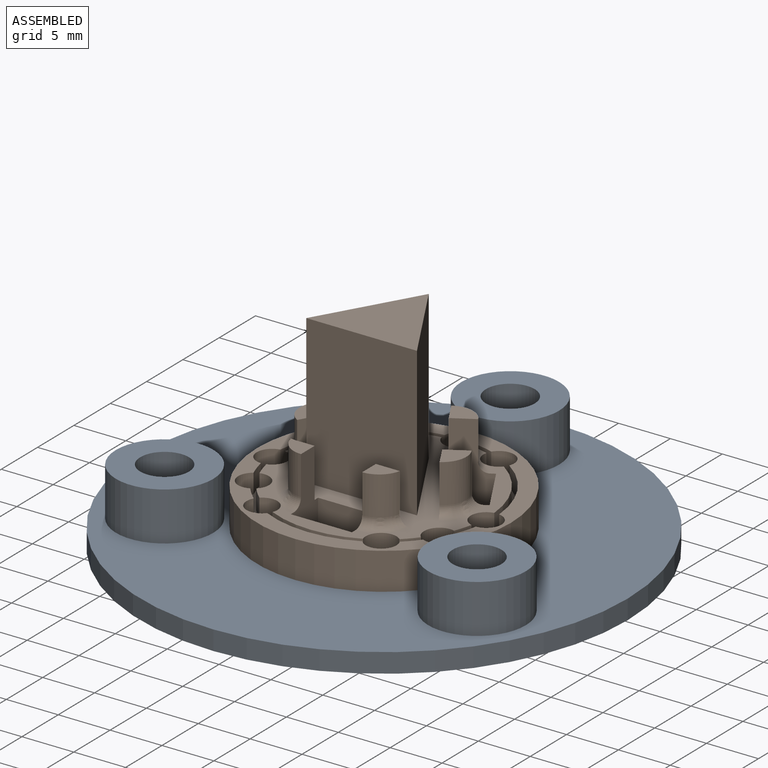
[diagram: assembled view]
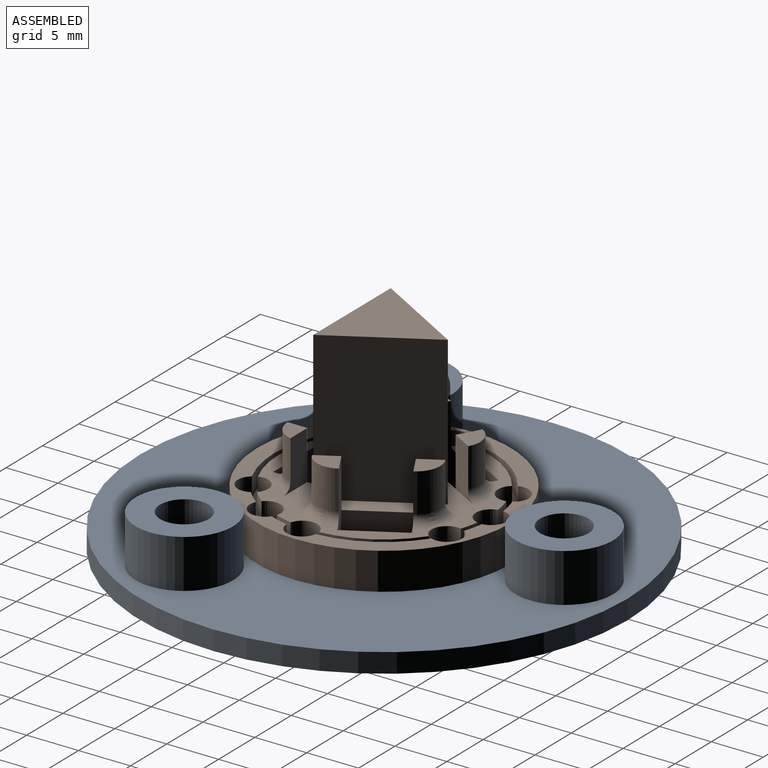
[diagram: assembled view, second angle]
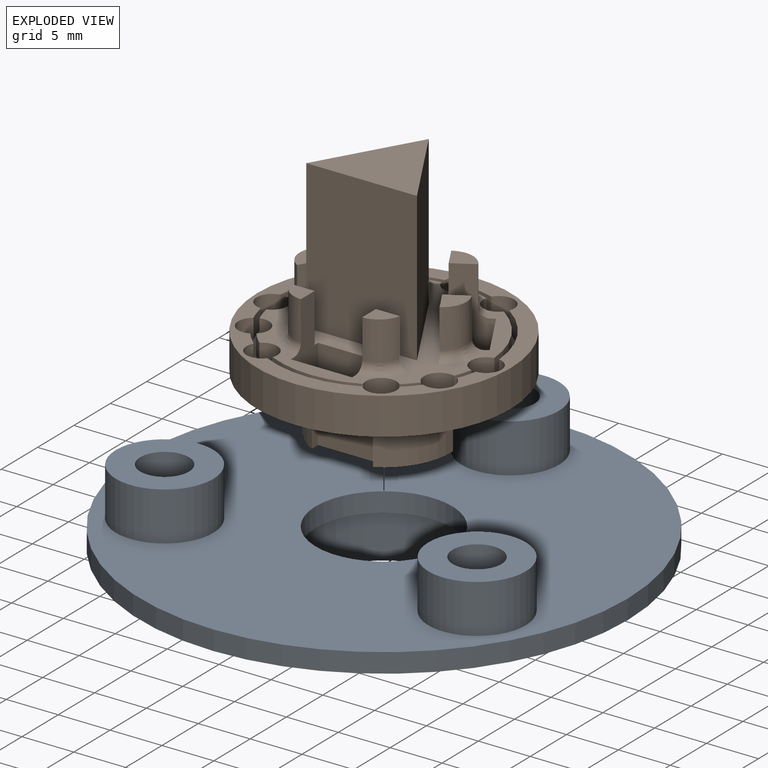
[diagram: exploded view]
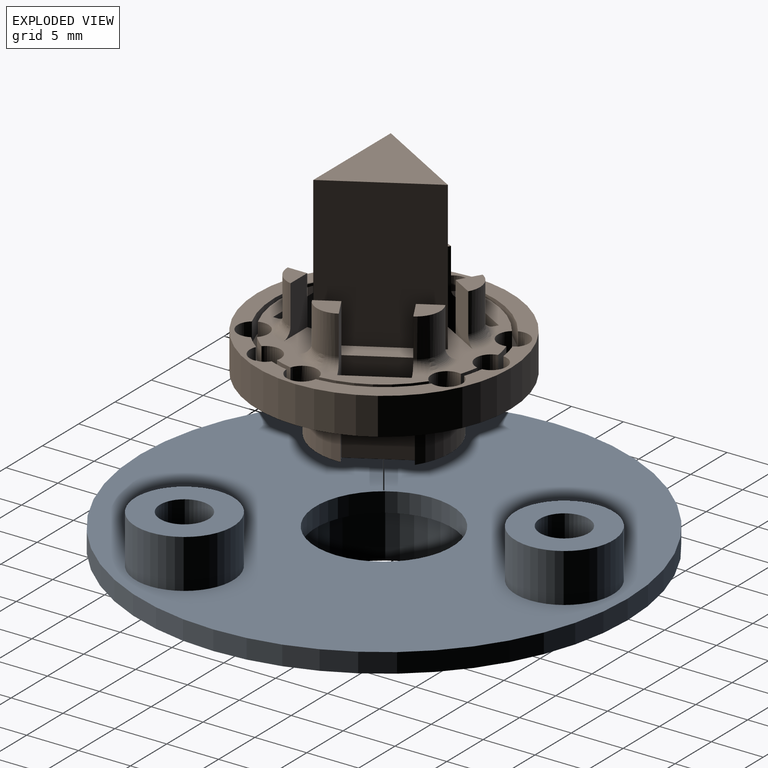
[diagram: exploded view, second angle]
ASSEMBLY  parts=2 mates=2
PART A: 20 faces, bbox 47x47x11.3 mm
  f0: plane 15.51x15.51mm, normal (0,0,-1), area 52.9mm2, adj f1,f17
  f1: cylinder r=6.58mm len=13.16mm, axis (0,0,-1), area 77.7mm2, adj f0,f3
  f2: cylinder r=23.5mm len=47mm, axis (0,0,-1), area 277.6mm2, adj f3,f4
  f3: plane 47x47mm, normal (0,0,1), area 1390.7mm2, adj f1,f2,f6,f10,f14
  f4: plane 47x47mm, normal (0,0,-1), area 1414.2mm2, adj f2,f18
  f5: cylinder r=2.35mm len=4.7mm, axis (0,0,-1), area 69.4mm2, adj f7,f8
  f6: cylinder r=4.7mm len=9.4mm, axis (0,0,-1), area 138.8mm2, adj f3,f7
  f7: plane 9.4x9.4mm, normal (0,0,1), area 52mm2, adj f5,f6
  f8: plane 4.7x4.7mm, normal (0,0,1), area 17.3mm2, adj f5
  f9: cylinder r=2.35mm len=4.7mm, axis (0,0,-1), area 69.4mm2, adj f11,f12
  f10: cylinder r=4.7mm len=9.4mm, axis (0,0,-1), area 138.8mm2, adj f3,f11
  f11: plane 9.4x9.4mm, normal (0,0,1), area 52mm2, adj f9,f10
  f12: plane 4.7x4.7mm, normal (0,0,1), area 17.3mm2, adj f9
  f13: cylinder r=2.35mm len=4.7mm, axis (0,0,-1), area 69.4mm2, adj f15,f16
  f14: cylinder r=4.7mm len=9.4mm, axis (0,0,-1), area 138.8mm2, adj f3,f15
  f15: plane 9.4x9.4mm, normal (0,0,1), area 52mm2, adj f13,f14
  f16: plane 4.7x4.7mm, normal (0,0,1), area 17.3mm2, adj f13
  f17: cylinder r=7.75mm len=15.51mm, axis (0,0,1), area 229mm2, adj f0,f19
  f18: cylinder r=10.1mm len=20.21mm, axis (0,0,1), area 298.4mm2, adj f4,f19
  f19: plane 20.21x20.21mm, normal (0,0,-1), area 131.9mm2, adj f17,f18
PART B: 100 faces, bbox 24.5x24.5x23.3 mm
  f0: plane 13.63x3.76mm, normal (1,0,0), area 27mm2, adj f4,f5,f10,f27,f29,f36,f37,f39
  f1: plane 13.63x3.76mm, normal (-1,0,0), area 27mm2, adj f2,f3,f10,f27,f36,f37,f38,f39
  f2: cylinder r=2.35mm len=3.76mm, axis (0,0,-1), area 12.1mm2, adj f1,f3,f7,f96,f97,f98
  f3: plane 2.3x1.88mm, normal (0,0,1), area 3.2mm2, adj f1,f2,f98
  f4: cylinder r=2.35mm len=3.76mm, axis (0,0,-1), area 12.1mm2, adj f0,f5,f6,f94,f95,f99
  f5: plane 2.3x1.88mm, normal (0,0,1), area 3.2mm2, adj f0,f4,f99
  f6: torus R=3.29mm, axis (0,0,1), area 2.4mm2, adj f4,f27,f95,f99
  f7: torus R=3.29mm, axis (0,0,1), area 2.4mm2, adj f2,f27,f96,f98
  f8: plane 8.37x5.62mm, normal (0,0,1), area 11.6mm2, adj f23,f45,f47,f48,f69,f74,f82,f87
  f9: plane 8.37x5.62mm, normal (0,0,1), area 11.6mm2, adj f11,f41,f43,f44,f68,f81,f88,f93
  f10: plane 9.05x2.35mm, normal (0,0,1), area 11.6mm2, adj f0,f1,f17,f39,f75,f80,f94,f97
  f11: cylinder r=10.1mm len=7.54mm, axis (0,0,1), area 16.9mm2, adj f9,f63,f68,f81
  f12: cylinder r=10.1mm len=1.88mm, axis (0,0,1), area 3.3mm2, adj f27,f63,f79,f80
  f13: cylinder r=10.1mm len=1.88mm, axis (0,0,1), area 3.3mm2, adj f27,f63,f79,f81
  f14: cylinder r=10.57mm len=7.95mm, axis (0,0,1), area 17.8mm2, adj f28,f63,f65,f78
  f15: cylinder r=10.57mm len=1.88mm, axis (0,0,1), area 3.6mm2, adj f28,f63,f76,f77
  f16: cylinder r=10.57mm len=1.88mm, axis (0,0,1), area 3.6mm2, adj f28,f63,f76,f78
  f17: cylinder r=10.1mm len=8.71mm, axis (0,0,1), area 16.9mm2, adj f10,f63,f75,f80
  f18: cylinder r=10.1mm len=1.88mm, axis (0,0,1), area 3.3mm2, adj f27,f63,f73,f74
  f19: cylinder r=10.1mm len=1.88mm, axis (0,0,1), area 3.3mm2, adj f27,f63,f73,f75
  f20: cylinder r=10.57mm len=9.18mm, axis (0,0,1), area 17.8mm2, adj f28,f63,f72,f77
  f21: cylinder r=10.57mm len=1.88mm, axis (0,0,1), area 3.6mm2, adj f28,f63,f70,f71
  f22: cylinder r=10.57mm len=1.88mm, axis (0,0,1), area 3.6mm2, adj f28,f63,f70,f72
  f23: cylinder r=10.1mm len=7.54mm, axis (0,0,1), area 16.9mm2, adj f8,f63,f69,f74
  f24: cylinder r=10.1mm len=1.88mm, axis (0,0,1), area 3.3mm2, adj f27,f63,f67,f68
  f25: cylinder r=10.57mm len=7.95mm, axis (0,0,1), area 17.8mm2, adj f28,f63,f66,f71
  f26: cylinder r=10.57mm len=1.88mm, axis (0,0,1), area 3.6mm2, adj f28,f63,f64,f65
  f27: plane 19.77x17.52mm, normal (0,0,1), area 98.8mm2, adj f0,f1,f6,f7,f12,f13,f18,f19
  f28: plane 24.44x24.44mm, normal (0,0,1), area 92.2mm2, adj f14,f15,f16,f20,f21,f22,f25,f26
  f29: cylinder r=6.44mm len=6.03mm, axis (0,0,1), area 39.4mm2, adj f0,f36,f37,f48
  f30: cylinder r=6.44mm len=6.96mm, axis (0,0,1), area 39.4mm2, adj f36,f37,f44,f47
  f31: plane 14.34x9.24mm, normal (0.87,0.5,0), area 152.9mm2, adj f27,f32,f33,f34
  f32: plane 14.34x9.24mm, normal (-0.87,0.5,0), area 152.9mm2, adj f27,f31,f33,f34
  f33: plane 14.34x10.67mm, normal (0,-1,0), area 152.9mm2, adj f27,f31,f32,f34
  f34: plane 10.67x9.24mm, normal (0,0,1), area 49.3mm2, adj f31,f32,f33
  f35: cylinder r=12.22mm len=24.44mm, axis (0,0,1), area 274.3mm2, adj f28,f36
  f36: plane 24.44x24.44mm, normal (0,0,-1), area 296mm2, adj f0,f1,f29,f30,f35,f38,f39,f41
  f37: plane 12.88x12.16mm, normal (0,0,-1), area 106.5mm2, adj f0,f1,f29,f30,f38,f40,f42,f43
  f38: cylinder r=6.44mm len=6.03mm, axis (0,0,1), area 39.4mm2, adj f1,f36,f37,f43
  f39: plane 5.9x3.57mm, normal (0,1,0), area 21.1mm2, adj f0,f1,f10,f36
  f40: plane 8.93x5.9mm, normal (0,-1,0), area 52.7mm2, adj f0,f1,f27,f37
  f41: plane 5.11x3.57mm, normal (-0.87,-0.5,0), area 21.1mm2, adj f9,f36,f43,f44
  f42: plane 8.93x5.11mm, normal (0.87,0.5,0), area 52.7mm2, adj f27,f37,f43,f44
  f43: plane 13.63x3.26mm, normal (-0.5,0.87,0), area 29.3mm2, adj f9,f36,f37,f38,f41,f42,f52,f53
  f44: plane 13.63x3.26mm, normal (0.5,-0.87,0), area 29.3mm2, adj f9,f30,f36,f37,f41,f42,f49,f50
  f45: plane 5.11x3.57mm, normal (0.87,-0.5,0), area 21.1mm2, adj f8,f36,f47,f48
  f46: plane 8.93x5.11mm, normal (-0.87,0.5,0), area 52.7mm2, adj f27,f37,f47,f48
  f47: plane 13.63x3.26mm, normal (-0.5,-0.87,0), area 29.3mm2, adj f8,f30,f36,f37,f45,f46,f58,f59
  f48: plane 13.63x3.26mm, normal (0.5,0.87,0), area 29.3mm2, adj f8,f29,f36,f37,f45,f46,f55,f56
  f49: plane 4.7x2.85mm, normal (-0.87,-0.5,0), area 11.2mm2, adj f27,f44,f50,f51,f91
  f50: cylinder r=2.35mm len=3.76mm, axis (0,0,-1), area 13.9mm2, adj f44,f49,f51,f91,f92,f93
  f51: plane 3.21x2.35mm, normal (0,0,1), area 4.3mm2, adj f44,f49,f50
  f52: plane 4.7x2.85mm, normal (-0.87,-0.5,0), area 11.2mm2, adj f27,f43,f53,f54,f90
  f53: cylinder r=2.35mm len=3.76mm, axis (0,0,-1), area 13.9mm2, adj f43,f52,f54,f88,f89,f90
  f54: plane 3.21x2.35mm, normal (0,0,1), area 4.3mm2, adj f43,f52,f53
  f55: plane 4.7x2.85mm, normal (0.87,-0.5,0), area 11.2mm2, adj f27,f48,f56,f57,f85
  f56: cylinder r=2.35mm len=3.76mm, axis (0,0,-1), area 13.9mm2, adj f48,f55,f57,f85,f86,f87
  f57: plane 3.21x2.35mm, normal (0,0,1), area 4.3mm2, adj f48,f55,f56
  f58: plane 4.7x2.85mm, normal (0.87,-0.5,0), area 11.2mm2, adj f27,f47,f59,f60,f84
  f59: cylinder r=2.35mm len=3.76mm, axis (0,0,-1), area 13.9mm2, adj f47,f58,f60,f82,f83,f84
  f60: plane 3.21x2.35mm, normal (0,0,1), area 4.3mm2, adj f47,f58,f59
  f61: cylinder r=10.1mm len=1.88mm, axis (0,0,1), area 3.3mm2, adj f27,f63,f67,f69
  f62: cylinder r=10.57mm len=1.88mm, axis (0,0,1), area 3.6mm2, adj f28,f63,f64,f66
  f63: plane 23.6x22.4mm, normal (0,0,1), area 80mm2, adj f11,f12,f13,f14,f15,f16,f17,f18
  f64: cylinder r=1.48mm len=2.95mm, axis (0,0,1), area 8.2mm2, adj f26,f28,f62,f63
  f65: cylinder r=1.48mm len=2.74mm, axis (0,0,1), area 8.2mm2, adj f14,f26,f28,f63
  f66: cylinder r=1.48mm len=2.74mm, axis (0,0,1), area 8.2mm2, adj f25,f28,f62,f63
  f67: cylinder r=1.48mm len=2.88mm, axis (0,0,1), area 7.5mm2, adj f24,f27,f61,f63
  f68: cylinder r=1.48mm len=2.62mm, axis (0,0,1), area 7.5mm2, adj f9,f11,f24,f27,f63,f92
  f69: cylinder r=1.48mm len=2.62mm, axis (0,0,1), area 7.5mm2, adj f8,f23,f27,f61,f63,f83
  f70: cylinder r=1.48mm len=2.69mm, axis (0,0,1), area 8.2mm2, adj f21,f22,f28,f63
  f71: cylinder r=1.48mm len=2.94mm, axis (0,0,1), area 8.2mm2, adj f21,f25,f28,f63
  f72: cylinder r=1.48mm len=2.63mm, axis (0,0,1), area 8.2mm2, adj f20,f22,f28,f63
  f73: cylinder r=1.48mm len=2.56mm, axis (0,0,1), area 7.5mm2, adj f18,f19,f27,f63
  f74: cylinder r=1.48mm len=2.88mm, axis (0,0,1), area 7.5mm2, adj f8,f18,f23,f27,f63,f86
  f75: cylinder r=1.48mm len=2.49mm, axis (0,0,1), area 7.5mm2, adj f10,f17,f19,f27,f63,f95
  f76: cylinder r=1.48mm len=2.69mm, axis (0,0,1), area 8.2mm2, adj f15,f16,f28,f63
  f77: cylinder r=1.48mm len=2.63mm, axis (0,0,1), area 8.2mm2, adj f15,f20,f28,f63
  f78: cylinder r=1.48mm len=2.94mm, axis (0,0,1), area 8.2mm2, adj f14,f16,f28,f63
  f79: cylinder r=1.48mm len=2.56mm, axis (0,0,1), area 7.5mm2, adj f12,f13,f27,f63
  f80: cylinder r=1.48mm len=2.49mm, axis (0,0,1), area 7.5mm2, adj f10,f12,f17,f27,f63,f96
  f81: cylinder r=1.48mm len=2.88mm, axis (0,0,1), area 7.5mm2, adj f9,f11,f13,f27,f63,f89
  f82: torus R=3.29mm, axis (0,0,1), area 2mm2, adj f8,f47,f59,f83
  f83: bspline ~1.3x1.3mm, area 1.1mm2, adj f59,f69,f82,f84
  f84: torus R=3.29mm, axis (0,0,1), area 3.1mm2, adj f27,f58,f59,f83
  f85: torus R=3.29mm, axis (0,0,1), area 3.1mm2, adj f27,f55,f56,f86
  f86: bspline ~1.14x1.1mm, area 1.1mm2, adj f56,f74,f85,f87
  f87: torus R=3.29mm, axis (0,0,1), area 2mm2, adj f8,f48,f56,f86
  f88: torus R=3.29mm, axis (0,0,1), area 2mm2, adj f9,f43,f53,f89
  f89: bspline ~1.14x1.09mm, area 1.1mm2, adj f53,f81,f88,f90
  f90: torus R=3.29mm, axis (0,0,1), area 3.1mm2, adj f27,f52,f53,f89
  f91: torus R=3.29mm, axis (0,0,1), area 3.1mm2, adj f27,f49,f50,f92
  f92: bspline ~1.31x1.29mm, area 1.1mm2, adj f50,f68,f91,f93
  f93: torus R=3.29mm, axis (0,0,1), area 2mm2, adj f9,f44,f50,f92
  f94: torus R=3.29mm, axis (0,0,1), area 2mm2, adj f0,f4,f10,f95
  f95: bspline ~1.39x1.38mm, area 1.1mm2, adj f4,f6,f75,f94
  f96: bspline ~1.39x1.39mm, area 1.1mm2, adj f2,f7,f80,f97
  f97: torus R=3.29mm, axis (0,0,1), area 2mm2, adj f1,f2,f10,f96
  f98: plane 4.75x3.3mm, normal (0,1,0), area 11mm2, adj f1,f2,f3,f7,f27
  f99: plane 4.74x3.3mm, normal (0,1,0), area 11mm2, adj f0,f4,f5,f6,f27
PLACE A t=(30.3,45.15,29.8)mm
PLACE B t=(30.3,45.15,35.25)mm
MATE planar B.f14 <-> A.f2  axis (0,0,-1) through (30.3,45.15,31.68)mm
MATE slider B.f29 <-> A.f17  axis (0,0,-1) through (30.3,45.15,26.32)mm
